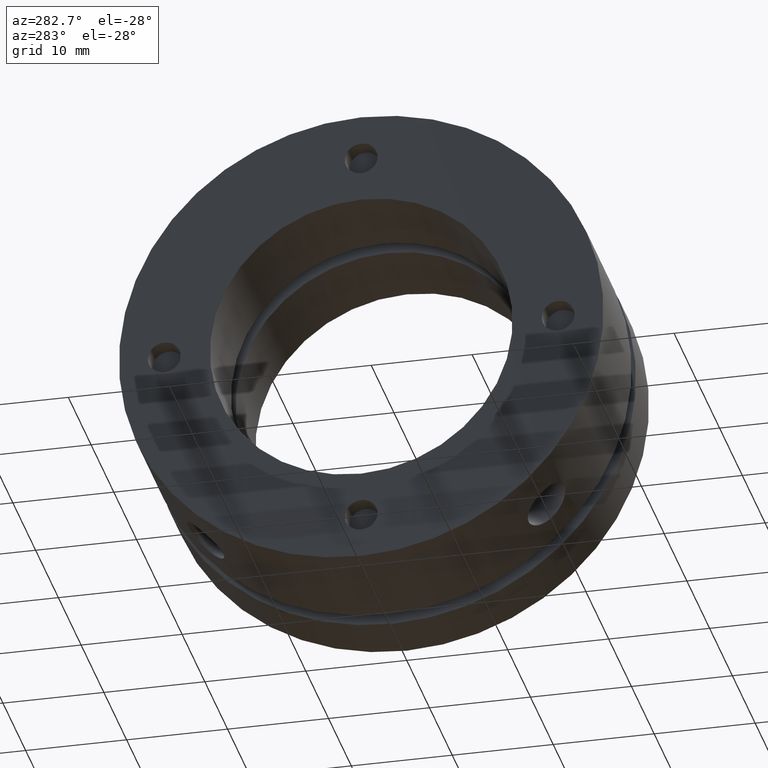
[diagram: clean part render]
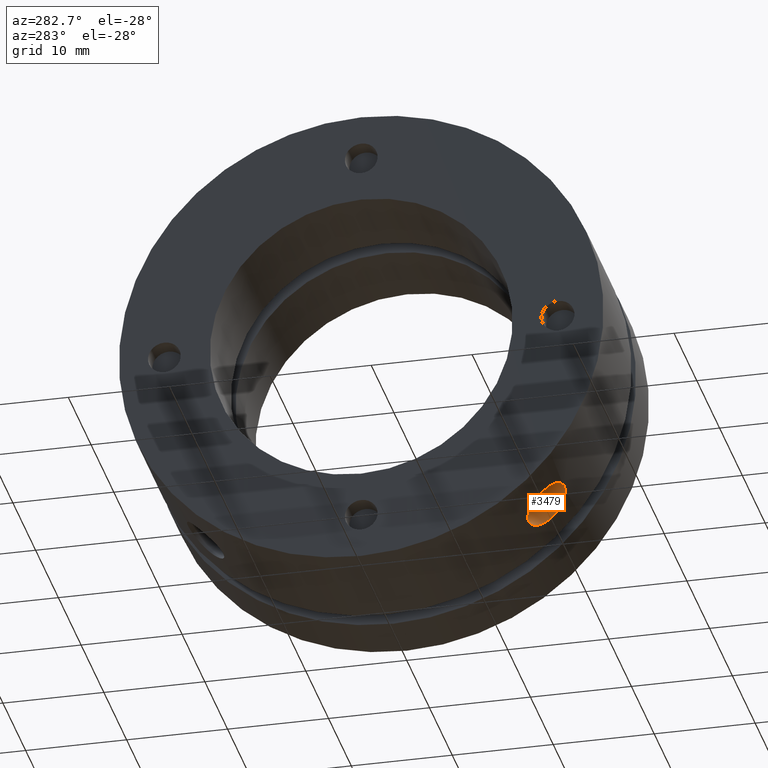
[diagram: same view with one face highlighted and labeled with its STEP entity id]
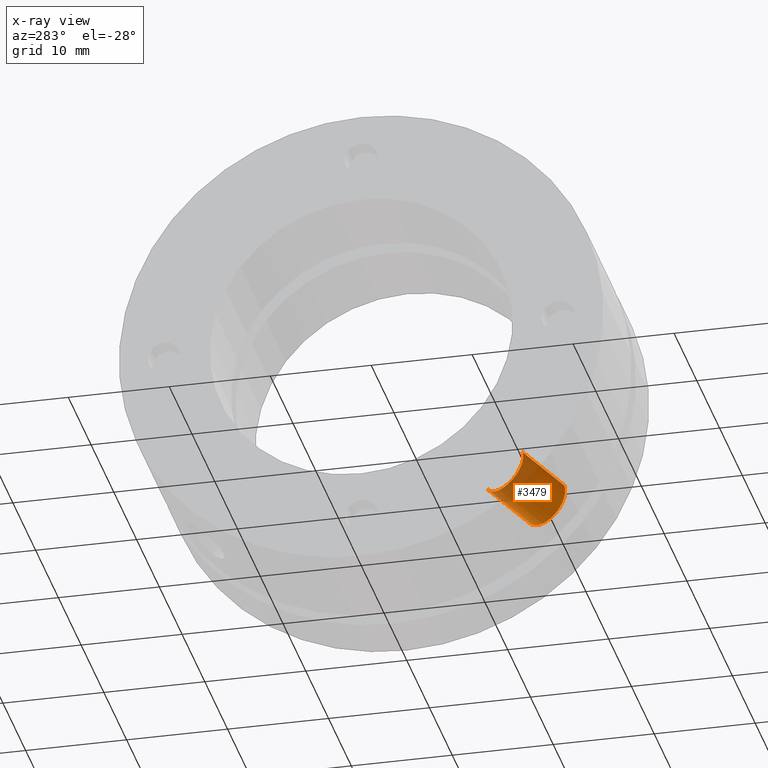
[diagram: x-ray of the same camera — body ghosted, the highlighted face saturated]
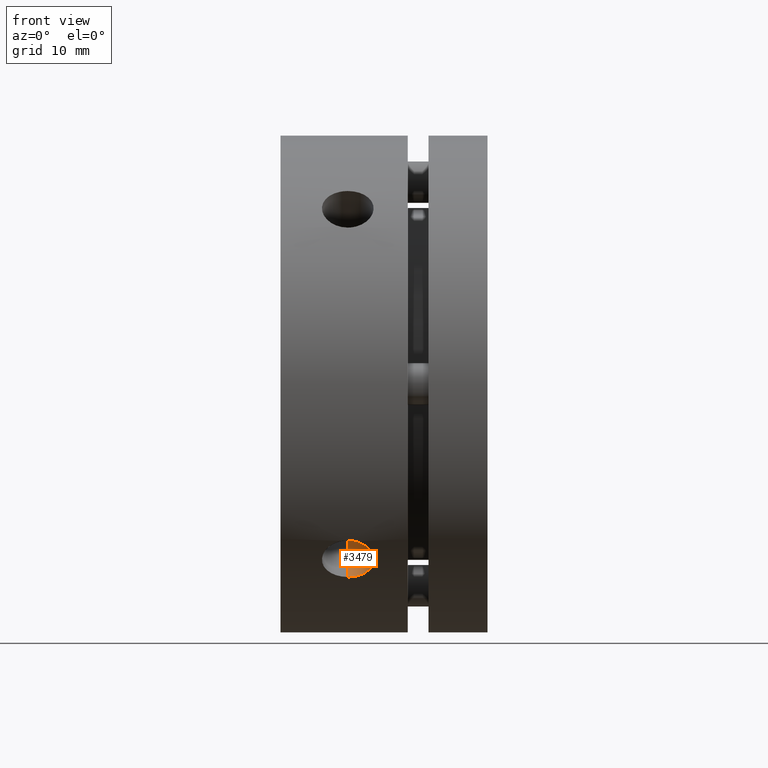
[diagram: same view with one face highlighted and labeled with its STEP entity id]
A machine part, auxiliary view. The second image highlights one B-rep face of the part: STEP entity #3479.
The next image is the same camera in x-ray: the body ghosted, the highlighted face saturated — about 34% of this face is hidden behind the body in this view.
A second angle (front view) of the same face is appended — the face is thin or edge-on in the first view.
In plain terms, the highlighted cylindrical surface (edge-blend (fillet) strip) has radius 2.5 mm, axis along (0, -0.7071, -0.7071).
Its self-contained STEP definition (entity closure, byte-faithful):
#204 = EDGE_LOOP ( 'NONE', ( #2987, #2986, #2985, #2984 ) ) ;
#344 = VERTEX_POINT ( 'NONE', #1220 ) ;
#353 = VERTEX_POINT ( 'NONE', #1229 ) ;
#358 = VERTEX_POINT ( 'NONE', #1234 ) ;
#363 = VERTEX_POINT ( 'NONE', #1239 ) ;
#1220 = CARTESIAN_POINT ( 'NONE',  ( 6.499999999999992900, -14.49568901193032000, -10.96015511078539400 ) ) ;
#1229 = CARTESIAN_POINT ( 'NONE',  ( 6.499999999999992900, -10.96015511078540200, -14.49568901193031700 ) ) ;
#1234 = CARTESIAN_POINT ( 'NONE',  ( 6.499999999999992900, -18.64600738258462100, -15.11047347665188100 ) ) ;
#1239 = CARTESIAN_POINT ( 'NONE',  ( 6.499999999999992900, -15.11047347665188100, -18.64600738258462100 ) ) ;
#1933 = DIRECTION ( 'NONE',  ( 0.0000000000000000000, -0.7071067811865480200, -0.7071067811865470200 ) ) ;
#1935 = CARTESIAN_POINT ( 'NONE',  ( 6.499999999999992900, -16.61700935788386600, -13.08147545195113400 ) ) ;
#1940 = CARTESIAN_POINT ( 'NONE',  ( 6.499999999999992900, -13.08147545195113400, -16.61700935788387300 ) ) ;
#1973 = DIRECTION ( 'NONE',  ( 0.0000000000000000000, -0.7071067811865480200, -0.7071067811865470200 ) ) ;
#2201 = CARTESIAN_POINT ( 'NONE',  ( 6.499999999999992900, -12.72792206135785500, -12.72792206135786100 ) ) ;
#2202 = DIRECTION ( 'NONE',  ( 0.0000000000000000000, -0.7071067811865480200, -0.7071067811865470200 ) ) ;
#2203 = DIRECTION ( 'NONE',  ( 0.0000000000000000000, 0.7071067811865471300, -0.7071067811865477900 ) ) ;
#2256 = DIRECTION ( 'NONE',  ( 0.0000000000000000000, 0.7071067811865469100, -0.7071067811865482400 ) ) ;
#2260 = DIRECTION ( 'NONE',  ( 0.0000000000000000000, -0.7071067811865480200, -0.7071067811865470200 ) ) ;
#2262 = CARTESIAN_POINT ( 'NONE',  ( 6.499999999999992900, -14.84924240491750100, -14.84924240491750200 ) ) ;
#2298 = CARTESIAN_POINT ( 'NONE',  ( 6.499999999999992900, -18.64600738258462100, -15.11047347665188100 ) ) ;
#2299 = CARTESIAN_POINT ( 'NONE',  ( 6.663149058830208000, -18.64600738258462400, -15.11047347665188300 ) ) ;
#2307 = CARTESIAN_POINT ( 'NONE',  ( 6.828874263606445000, -18.63567460183176600, -15.12324919382929300 ) ) ;
#2308 = CARTESIAN_POINT ( 'NONE',  ( 7.149505834889907000, -18.59508179867187000, -15.17313306290819400 ) ) ;
#2309 = CARTESIAN_POINT ( 'NONE',  ( 7.305357747171059100, -18.56504026833714200, -15.20997198314690200 ) ) ;
#2310 = CARTESIAN_POINT ( 'NONE',  ( 7.608089020813714900, -18.48494382479198700, -15.30721462864414700 ) ) ;
#2311 = CARTESIAN_POINT ( 'NONE',  ( 7.754278292507634300, -18.43476429993577200, -15.36774922054260300 ) ) ;
#2312 = CARTESIAN_POINT ( 'NONE',  ( 8.024949687599141500, -18.31791106632166300, -15.50684961770134500 ) ) ;
#2313 = CARTESIAN_POINT ( 'NONE',  ( 8.151171452722531200, -18.25082790814220200, -15.58592218521291000 ) ) ;
#2314 = CARTESIAN_POINT ( 'NONE',  ( 8.384520897980511500, -18.09799740648430000, -15.76312721419900400 ) ) ;
#2315 = CARTESIAN_POINT ( 'NONE',  ( 8.487820873483990200, -18.01475620719024900, -15.85833954247639700 ) ) ;
#2316 = CARTESIAN_POINT ( 'NONE',  ( 8.668769269536230800, -17.83447728923754700, -16.06081548579150500 ) ) ;
#2317 = CARTESIAN_POINT ( 'NONE',  ( 8.747045968593099000, -17.73626932028609800, -16.16934442822342200 ) ) ;
#2318 = CARTESIAN_POINT ( 'NONE',  ( 8.872428787113666000, -17.53074231341938500, -16.39194993222980700 ) ) ;
#2319 = CARTESIAN_POINT ( 'NONE',  ( 8.919702520605225600, -17.42393642007434800, -16.50551829227236000 ) ) ;
#2320 = CARTESIAN_POINT ( 'NONE',  ( 8.983653231124879600, -17.20191256122324200, -16.73678280624328000 ) ) ;
#2321 = CARTESIAN_POINT ( 'NONE',  ( 9.000118813944618900, -17.08613861729310900, -16.85500438260371700 ) ) ;
#2322 = CARTESIAN_POINT ( 'NONE',  ( 8.999879879323447800, -16.85243068115810400, -17.08867712035387900 ) ) ;
#2323 = CARTESIAN_POINT ( 'NONE',  ( 8.983540374752056600, -16.73633876296904400, -17.20234024167696800 ) ) ;
#2324 = CARTESIAN_POINT ( 'NONE',  ( 8.919755708051690500, -16.50574658884377800, -17.42371586442314100 ) ) ;
#2325 = CARTESIAN_POINT ( 'NONE',  ( 8.871526022246270000, -16.39001209507249600, -17.53255331335137500 ) ) ;
#2326 = CARTESIAN_POINT ( 'NONE',  ( 8.745822521893080300, -16.16751309840067200, -17.73793794033493400 ) ) ;
#2327 = CARTESIAN_POINT ( 'NONE',  ( 8.668942269786329600, -16.06098701449222000, -17.83432621186803900 ) ) ;
#2328 = CARTESIAN_POINT ( 'NONE',  ( 8.487357834731650300, -15.85784350446210300, -18.01519621594502500 ) ) ;
#2329 = CARTESIAN_POINT ( 'NONE',  ( 8.381768791132374800, -15.76090652893669400, -18.09992134762024900 ) ) ;
#2330 = CARTESIAN_POINT ( 'NONE',  ( 8.151169985642326300, -15.58605338395570800, -18.25070594022054800 ) ) ;
#2331 = CARTESIAN_POINT ( 'NONE',  ( 8.025333772884504700, -15.50697949108046100, -18.31780513244960300 ) ) ;
#2332 = CARTESIAN_POINT ( 'NONE',  ( 7.751993606226538000, -15.36664308281876100, -18.43569033620509100 ) ) ;
#2333 = CARTESIAN_POINT ( 'NONE',  ( 7.606642076651520600, -15.30672152351928600, -18.48535066515077600 ) ) ;
#2334 = CARTESIAN_POINT ( 'NONE',  ( 7.305832962887897100, -15.21015304352840800, -18.56489044957180600 ) ) ;
#2335 = CARTESIAN_POINT ( 'NONE',  ( 7.148146758447468100, -15.17279455164055500, -18.59535808816269400 ) ) ;
#2336 = CARTESIAN_POINT ( 'NONE',  ( 6.825416574976439500, -15.12284022354692000, -18.63600656005364400 ) ) ;
#2337 = CARTESIAN_POINT ( 'NONE',  ( 6.663148771003122300, -15.11047347665188500, -18.64600738258463200 ) ) ;
#2338 = CARTESIAN_POINT ( 'NONE',  ( 6.499999999999992900, -15.11047347665188100, -18.64600738258462100 ) ) ;
#2634 = LINE ( 'NONE', #1935, #2638 ) ;
#2637 = LINE ( 'NONE', #1940, #2640 ) ;
#2638 = VECTOR ( 'NONE', #1933, 1000.000000000000000 ) ;
#2640 = VECTOR ( 'NONE', #1973, 1000.000000000000000 ) ;
#2701 = CIRCLE ( 'NONE', #3397, 2.500000000000000000 ) ;
#2741 = FACE_OUTER_BOUND ( 'NONE', #204, .T. ) ;
#2746 = CYLINDRICAL_SURFACE ( 'NONE', #2868, 2.500000000000000900 ) ;
#2868 = AXIS2_PLACEMENT_3D ( 'NONE', #2262, #2260, #2256 ) ;
#2939 = EDGE_CURVE ( 'NONE', #344, #358, #2634, .T. ) ;
#2941 = EDGE_CURVE ( 'NONE', #353, #363, #2637, .T. ) ;
#2984 = ORIENTED_EDGE ( 'NONE', *, *, #3497, .F. ) ;
#2985 = ORIENTED_EDGE ( 'NONE', *, *, #2941, .T. ) ;
#2986 = ORIENTED_EDGE ( 'NONE', *, *, #3321, .F. ) ;
#2987 = ORIENTED_EDGE ( 'NONE', *, *, #2939, .F. ) ;
#3216 = B_SPLINE_CURVE_WITH_KNOTS ( 'NONE', 3,
 ( #2298, #2299, #2307, #2308, #2309, #2310, #2311, #2312, #2313, #2314, #2315, #2316, #2317, #2318, #2319, #2320, #2321, #2322, #2323, #2324, #2325, #2326, #2327, #2328, #2329, #2330, #2331, #2332, #2333, #2334, #2335, #2336, #2337, #2338 ),
 .UNSPECIFIED., .F., .F.,
 ( 4, 2, 2, 2, 2, 2, 2, 2, 2, 2, 2, 2, 2, 2, 2, 2, 4 ),
 ( 0.003911628873202878400, 0.004400360619513399600, 0.004889092365823920900, 0.005377824112134442200, 0.005866555858444966000, 0.006355287604755487300, 0.006844019351066007700, 0.007332751097376528900, 0.007821482843687048400, 0.008310214589997569700, 0.008798946336308090900, 0.009287678082618610500, 0.009776409828929130000, 0.01026514157523965100, 0.01075387332155017100, 0.01124260506786068900, 0.01173133681417120800 ),
 .UNSPECIFIED. ) ;
#3321 = EDGE_CURVE ( 'NONE', #353, #344, #2701, .T. ) ;
#3397 = AXIS2_PLACEMENT_3D ( 'NONE', #2201, #2202, #2203 ) ;
#3479 = ADVANCED_FACE ( 'NONE', ( #2741 ), #2746, .F. ) ;
#3497 = EDGE_CURVE ( 'NONE', #358, #363, #3216, .T. ) ;